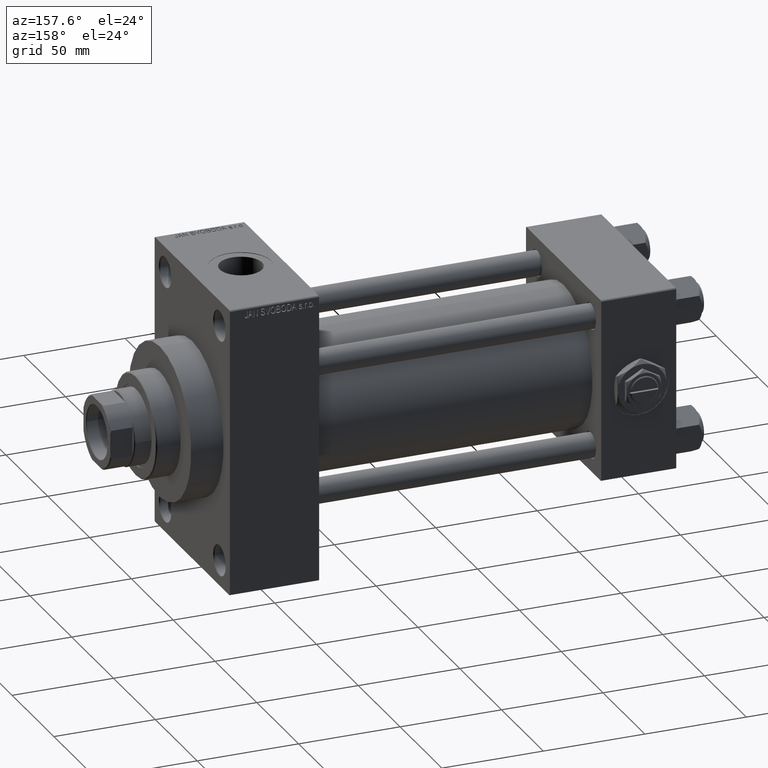
[diagram: clean part render]
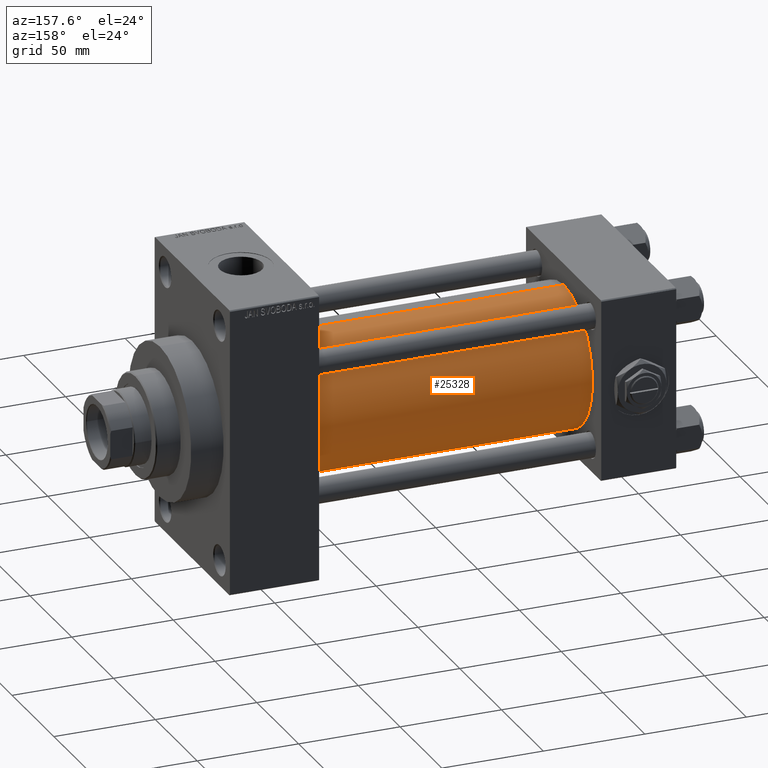
[diagram: same view with one face highlighted and labeled with its STEP entity id]
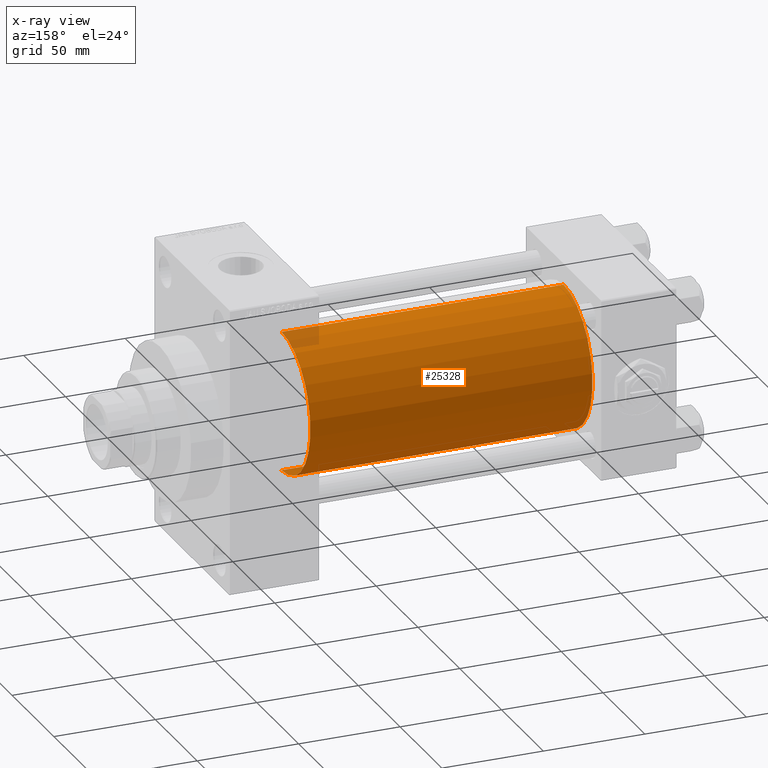
[diagram: x-ray of the same camera — body ghosted, the highlighted face saturated]
A machine part, auxiliary view. The second image highlights one B-rep face of the part: STEP entity #25328.
The next image is the same camera in x-ray: the body ghosted, the highlighted face saturated — about 2% of this face is hidden behind the body in this view.
In plain terms, the highlighted cylindrical surface (partial cylindrical patch) has radius 34.5 mm, axis along (-1, -0, -0).
Its self-contained STEP definition (entity closure, byte-faithful):
#748 = CARTESIAN_POINT ( 'NONE',  ( 176.0000000000000284, 1.622946243093158675E-15, -34.50000000000000000 ) ) ;
#2089 = CARTESIAN_POINT ( 'NONE',  ( 176.0000000000000284, 1.622946243093158675E-15, -34.50000000000000000 ) ) ;
#2792 = EDGE_CURVE ( 'NONE', #10025, #7404, #20159, .T. ) ;
#3052 = ORIENTED_EDGE ( 'NONE', *, *, #15140, .T. ) ;
#4692 = CARTESIAN_POINT ( 'NONE',  ( 176.0000000000000284, -2.602085213965210642E-15, 34.50000000000000000 ) ) ;
#4798 = AXIS2_PLACEMENT_3D ( 'NONE', #5919, #24980, #40818 ) ;
#5070 = DIRECTION ( 'NONE',  ( -1.000000000000000000, -0.000000000000000000, -0.000000000000000000 ) ) ;
#5699 = EDGE_CURVE ( 'NONE', #47171, #39824, #44718, .T. ) ;
#5919 = CARTESIAN_POINT ( 'NONE',  ( 176.0000000000000284, -2.602085213965210642E-15, 0.000000000000000000 ) ) ;
#6852 = DIRECTION ( 'NONE',  ( -1.000000000000000000, -0.000000000000000000, -0.000000000000000000 ) ) ;
#6934 = CIRCLE ( 'NONE', #24311, 34.50000000000000000 ) ;
#6976 = DIRECTION ( 'NONE',  ( 1.000000000000000000, 0.000000000000000000, 0.000000000000000000 ) ) ;
#7404 = VERTEX_POINT ( 'NONE', #21288 ) ;
#8328 = EDGE_LOOP ( 'NONE', ( #45186, #13786, #3052, #48265 ) ) ;
#10025 = VERTEX_POINT ( 'NONE', #748 ) ;
#10934 = DIRECTION ( 'NONE',  ( 0.000000000000000000, 0.000000000000000000, -1.000000000000000000 ) ) ;
#13027 = CIRCLE ( 'NONE', #27287, 34.50000000000000000 ) ;
#13786 = ORIENTED_EDGE ( 'NONE', *, *, #2792, .T. ) ;
#15140 = EDGE_CURVE ( 'NONE', #7404, #39824, #6934, .T. ) ;
#19085 = CARTESIAN_POINT ( 'NONE',  ( 176.0000000000000284, -2.602085213965210642E-15, 0.000000000000000000 ) ) ;
#20159 = LINE ( 'NONE', #2089, #20410 ) ;
#20410 = VECTOR ( 'NONE', #5070, 1000.000000000000000 ) ;
#21288 = CARTESIAN_POINT ( 'NONE',  ( 37.00000000000000711, 1.622946243093158675E-15, -34.50000000000000000 ) ) ;
#21707 = DIRECTION ( 'NONE',  ( 0.000000000000000000, 0.000000000000000000, 1.000000000000000000 ) ) ;
#24017 = CYLINDRICAL_SURFACE ( 'NONE', #4798, 34.50000000000000000 ) ;
#24311 = AXIS2_PLACEMENT_3D ( 'NONE', #36821, #33120, #21707 ) ;
#24733 = FACE_OUTER_BOUND ( 'NONE', #8328, .T. ) ;
#24980 = DIRECTION ( 'NONE',  ( -1.000000000000000000, -0.000000000000000000, -0.000000000000000000 ) ) ;
#25328 = ADVANCED_FACE ( 'NONE', ( #24733 ), #24017, .T. ) ;
#27287 = AXIS2_PLACEMENT_3D ( 'NONE', #19085, #6976, #10934 ) ;
#29352 = VECTOR ( 'NONE', #6852, 1000.000000000000000 ) ;
#31326 = CARTESIAN_POINT ( 'NONE',  ( 37.00000000000000711, -2.602085213965210642E-15, 34.50000000000000000 ) ) ;
#33103 = CARTESIAN_POINT ( 'NONE',  ( 176.0000000000000284, -2.602085213965210642E-15, 34.50000000000000000 ) ) ;
#33120 = DIRECTION ( 'NONE',  ( 1.000000000000000000, -0.000000000000000000, 0.000000000000000000 ) ) ;
#36821 = CARTESIAN_POINT ( 'NONE',  ( 37.00000000000000711, -2.602085213965210642E-15, 0.000000000000000000 ) ) ;
#39824 = VERTEX_POINT ( 'NONE', #31326 ) ;
#40818 = DIRECTION ( 'NONE',  ( 0.000000000000000000, 0.000000000000000000, 1.000000000000000000 ) ) ;
#41163 = EDGE_CURVE ( 'NONE', #10025, #47171, #13027, .T. ) ;
#44718 = LINE ( 'NONE', #33103, #29352 ) ;
#45186 = ORIENTED_EDGE ( 'NONE', *, *, #41163, .F. ) ;
#47171 = VERTEX_POINT ( 'NONE', #4692 ) ;
#48265 = ORIENTED_EDGE ( 'NONE', *, *, #5699, .F. ) ;